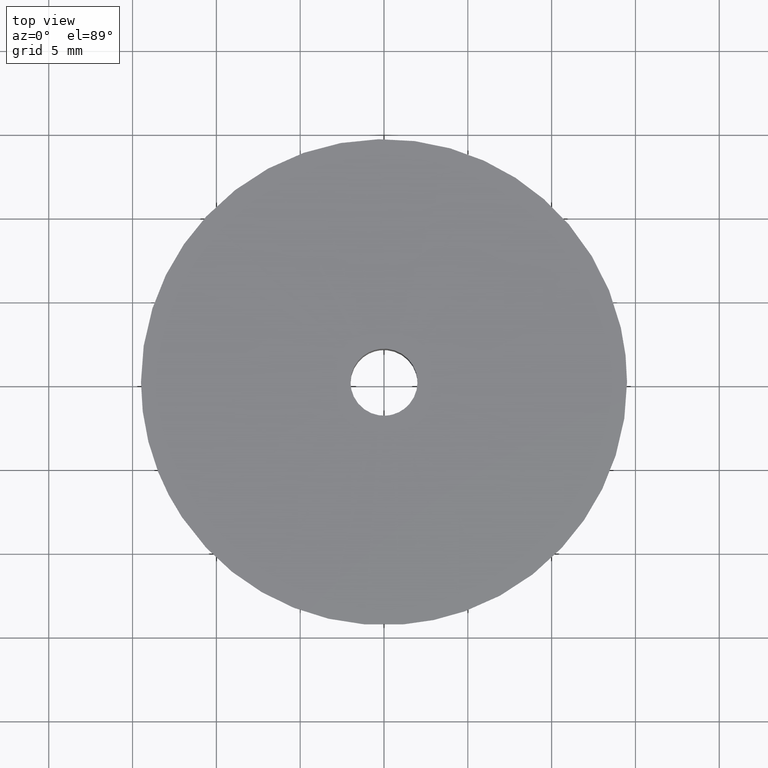
[diagram: clean part render]
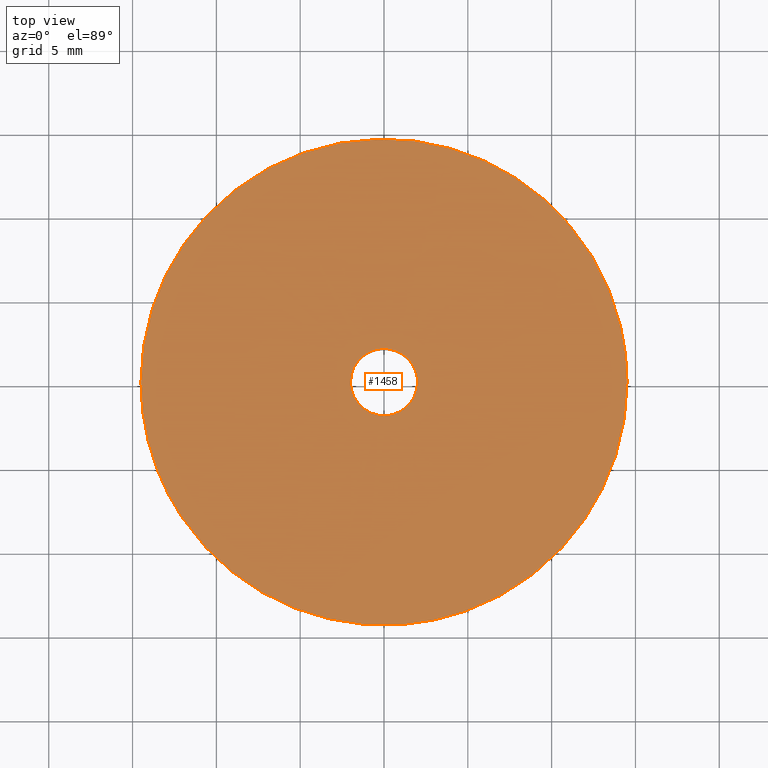
[diagram: same view with one face highlighted and labeled with its STEP entity id]
A machine part, top view. The second image highlights one B-rep face of the part: STEP entity #1458.
In plain terms, the highlighted face is a freeform B-spline surface patch.
Its self-contained STEP definition (entity closure, byte-faithful):
#526=CARTESIAN_POINT('',(1.137648527288524,-14.455301384026660,14.999996332707161));
#527=VERTEX_POINT('',#526);
#533=CARTESIAN_POINT('',(-13.483035349738991,-5.334579493426175,14.999995989106999));
#534=VERTEX_POINT('',#533);
#535=CARTESIAN_POINT('',(1.137648527288524,-14.455301384026654,14.999996332707154));
#536=CARTESIAN_POINT('',(0.569702345766286,-14.499999400329264,14.999996323570674));
#537=CARTESIAN_POINT('',(-0.000000011370667,-14.499999410522481,14.999996313932771));
#538=CARTESIAN_POINT('',(-9.856725876422109,-14.499999586880797,14.999996147182127));
#539=CARTESIAN_POINT('',(-13.483035349738994,-5.334579493426175,14.999995989106997));
#547=(BOUNDED_CURVE()B_SPLINE_CURVE(2,(#535,#536,#537,#538,#539),.UNSPECIFIED.,.F.,.U.)B_SPLINE_CURVE_WITH_KNOTS((3,2,3),(0.736331399213855,0.750000000000000,0.937532605533869),.UNSPECIFIED.)CURVE()GEOMETRIC_REPRESENTATION_ITEM()RATIONAL_B_SPLINE_CURVE((0.969723561903117,0.983986238076280,1.0,0.780291886130846,0.890203252668208))REPRESENTATION_ITEM(''));
#548=EDGE_CURVE('',#527,#534,#547,.T.);
#600=CARTESIAN_POINT('',(-14.500000000000000,0.0,15.0));
#601=VERTEX_POINT('',#600);
#602=CARTESIAN_POINT('',(-13.483035349738994,-5.334579493426175,14.999995989106997));
#603=CARTESIAN_POINT('',(-14.499999689200694,-2.764224827462003,14.999997994553501));
#604=CARTESIAN_POINT('',(-14.500000000000000,0.0,15.0));
#612=(BOUNDED_CURVE()B_SPLINE_CURVE(2,(#602,#603,#604),.UNSPECIFIED.,.F.,.U.)B_SPLINE_CURVE_WITH_KNOTS((3,3),(0.937532605533869,1.0),.UNSPECIFIED.)CURVE()GEOMETRIC_REPRESENTATION_ITEM()RATIONAL_B_SPLINE_CURVE((0.890203252668208,0.926814895055701,1.0))REPRESENTATION_ITEM(''));
#613=EDGE_CURVE('',#534,#601,#612,.T.);
#615=CARTESIAN_POINT('',(14.500000000000000,0.0,15.0));
#616=VERTEX_POINT('',#615);
#617=CARTESIAN_POINT('',(-14.500000000000000,0.0,15.0));
#618=CARTESIAN_POINT('',(-14.500000000000000,14.500000000000000,14.999999999999995));
#619=CARTESIAN_POINT('',(0.0,14.500000000000000,15.0));
#620=CARTESIAN_POINT('',(14.500000000000000,14.500000000000000,14.999999999999995));
#621=CARTESIAN_POINT('',(14.500000000000000,0.0,15.0));
#629=(BOUNDED_CURVE()B_SPLINE_CURVE(2,(#617,#618,#619,#620,#621),.UNSPECIFIED.,.F.,.U.)B_SPLINE_CURVE_WITH_KNOTS((3,2,3),(0.0,0.250000000000000,0.500000000000000),.UNSPECIFIED.)CURVE()GEOMETRIC_REPRESENTATION_ITEM()RATIONAL_B_SPLINE_CURVE((1.0,0.707106781186548,1.0,0.707106781186548,1.0))REPRESENTATION_ITEM(''));
#630=EDGE_CURVE('',#601,#616,#629,.T.);
#632=CARTESIAN_POINT('',(14.500000000000000,0.0,15.0));
#633=CARTESIAN_POINT('',(14.499999976022384,-13.403669556257707,14.999998166353572));
#634=CARTESIAN_POINT('',(1.137648527288524,-14.455301384026654,14.999996332707154));
#642=(BOUNDED_CURVE()B_SPLINE_CURVE(2,(#632,#633,#634),.UNSPECIFIED.,.F.,.U.)B_SPLINE_CURVE_WITH_KNOTS((3,3),(0.500000000000000,0.736331399213855),.UNSPECIFIED.)CURVE()GEOMETRIC_REPRESENTATION_ITEM()RATIONAL_B_SPLINE_CURVE((1.0,0.723120543110268,0.969723561903117))REPRESENTATION_ITEM(''));
#643=EDGE_CURVE('',#616,#527,#642,.T.);
#731=CARTESIAN_POINT('',(-0.236066905370687,1.986019238624396,14.999999999999989));
#732=VERTEX_POINT('',#731);
#733=CARTESIAN_POINT('',(2.0,0.0,15.0));
#734=VERTEX_POINT('',#733);
#735=CARTESIAN_POINT('',(-0.236066905370687,1.986019238624396,14.999999999999991));
#736=CARTESIAN_POINT('',(-0.118447449065596,2.000000000000000,14.999999999999998));
#737=CARTESIAN_POINT('',(0.0,2.0,15.0));
#738=CARTESIAN_POINT('',(2.000000000000000,2.000000000000000,14.999999999999995));
#739=CARTESIAN_POINT('',(2.0,0.0,15.0));
#747=(BOUNDED_CURVE()B_SPLINE_CURVE(2,(#735,#736,#737,#738,#739),.UNSPECIFIED.,.F.,.U.)B_SPLINE_CURVE_WITH_KNOTS((3,2,3),(0.229562606601695,0.250000000000000,0.500000000000000),.UNSPECIFIED.)CURVE()GEOMETRIC_REPRESENTATION_ITEM()RATIONAL_B_SPLINE_CURVE((0.956027015042158,0.976056104253655,1.0,0.707106781186548,1.0))REPRESENTATION_ITEM(''));
#748=EDGE_CURVE('',#732,#734,#747,.T.);
#789=CARTESIAN_POINT('',(0.122097079093708,-1.996269596842266,15.0));
#790=VERTEX_POINT('',#789);
#796=CARTESIAN_POINT('',(2.0,0.0,15.0));
#797=CARTESIAN_POINT('',(2.000000000000000,-1.881412133766066,15.000000000000002));
#798=CARTESIAN_POINT('',(0.122097079093708,-1.996269596842266,14.999999999999996));
#806=(BOUNDED_CURVE()B_SPLINE_CURVE(2,(#796,#797,#798),.UNSPECIFIED.,.F.,.U.)B_SPLINE_CURVE_WITH_KNOTS((3,3),(0.500000000000000,0.739332962237819),.UNSPECIFIED.)CURVE()GEOMETRIC_REPRESENTATION_ITEM()RATIONAL_B_SPLINE_CURVE((1.0,0.719603993288027,0.976072041664310))REPRESENTATION_ITEM(''));
#807=EDGE_CURVE('',#734,#790,#806,.T.);
#830=CARTESIAN_POINT('',(-2.0,0.0,15.0));
#831=VERTEX_POINT('',#830);
#832=CARTESIAN_POINT('',(-2.0,0.0,15.0));
#833=CARTESIAN_POINT('',(-2.000000000000000,1.776350460583122,14.999999999999996));
#834=CARTESIAN_POINT('',(-0.236066905370687,1.986019238624396,14.999999999999991));
#842=(BOUNDED_CURVE()B_SPLINE_CURVE(2,(#832,#833,#834),.UNSPECIFIED.,.F.,.U.)B_SPLINE_CURVE_WITH_KNOTS((3,3),(0.0,0.229562606601695),.UNSPECIFIED.)CURVE()GEOMETRIC_REPRESENTATION_ITEM()RATIONAL_B_SPLINE_CURVE((1.0,0.731050676932893,0.956027015042158))REPRESENTATION_ITEM(''));
#843=EDGE_CURVE('',#831,#732,#842,.T.);
#845=CARTESIAN_POINT('',(0.122097079093708,-1.996269596842266,14.999999999999998));
#846=CARTESIAN_POINT('',(0.061105526621239,-2.000000000000000,15.000000000000005));
#847=CARTESIAN_POINT('',(0.0,-2.0,15.0));
#848=CARTESIAN_POINT('',(-2.000000000000000,-2.000000000000000,14.999999999999995));
#849=CARTESIAN_POINT('',(-2.0,0.0,15.0));
#857=(BOUNDED_CURVE()B_SPLINE_CURVE(2,(#845,#846,#847,#848,#849),.UNSPECIFIED.,.F.,.U.)B_SPLINE_CURVE_WITH_KNOTS((3,2,3),(0.739332962237820,0.750000000000000,1.0),.UNSPECIFIED.)CURVE()GEOMETRIC_REPRESENTATION_ITEM()RATIONAL_B_SPLINE_CURVE((0.976072041664312,0.987502787898522,1.0,0.707106781186548,1.0))REPRESENTATION_ITEM(''));
#858=EDGE_CURVE('',#790,#831,#857,.T.);
#1441=CARTESIAN_POINT('',(15.948549943792370,-15.948247767103760,15.0));
#1442=CARTESIAN_POINT('',(-15.948550721632991,-15.948247767103760,15.0));
#1443=CARTESIAN_POINT('',(15.948549943792370,15.948536345971670,15.0));
#1444=CARTESIAN_POINT('',(-15.948550721632991,15.948536345971670,15.0));
#1445=B_SPLINE_SURFACE_WITH_KNOTS('',1,1,((#1441,#1443),(#1442,#1444)),.UNSPECIFIED.,.F.,.F.,.U.,(2,2),(2,2),(0.0,31.897100665425359),(0.0,31.896784113075430),.UNSPECIFIED.);
#1446=ORIENTED_EDGE('',*,*,#613,.F.);
#1447=ORIENTED_EDGE('',*,*,#548,.F.);
#1448=ORIENTED_EDGE('',*,*,#643,.F.);
#1449=ORIENTED_EDGE('',*,*,#630,.F.);
#1450=EDGE_LOOP('',(#1446,#1447,#1448,#1449));
#1451=FACE_OUTER_BOUND('',#1450,.T.);
#1452=ORIENTED_EDGE('',*,*,#807,.T.);
#1453=ORIENTED_EDGE('',*,*,#858,.T.);
#1454=ORIENTED_EDGE('',*,*,#843,.T.);
#1455=ORIENTED_EDGE('',*,*,#748,.T.);
#1456=EDGE_LOOP('',(#1452,#1453,#1454,#1455));
#1457=FACE_BOUND('',#1456,.T.);
#1458=ADVANCED_FACE('',(#1451,#1457),#1445,.F.);